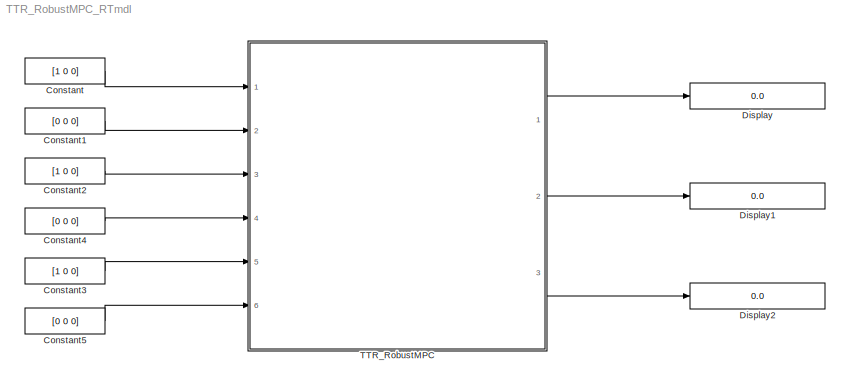
MODEL TTR_RobustMPC_RTmdl
KIND model
BLOCK [Constant] Constant
  SID = 31
  Value = [1 0 0]
BLOCK [Constant] Constant1
  SID = 32
  Value = [0 0 0]
BLOCK [Constant] Constant2
  SID = 33
  Value = [1 0 0]
BLOCK [Constant] Constant3
  SID = 34
  Value = [1 0 0]
BLOCK [Constant] Constant4
  SID = 35
  Value = [0 0 0]
BLOCK [Constant] Constant5
  SID = 36
  Value = [0 0 0]
BLOCK [Display] Display
  Decimation = 1
  Lockdown = off
  Ports = [1]
  SID = 37
BLOCK [Display] Display1
  Decimation = 1
  Lockdown = off
  Ports = [1]
  SID = 38
BLOCK [Display] Display2
  Decimation = 1
  Lockdown = off
  Ports = [1]
  SID = 39
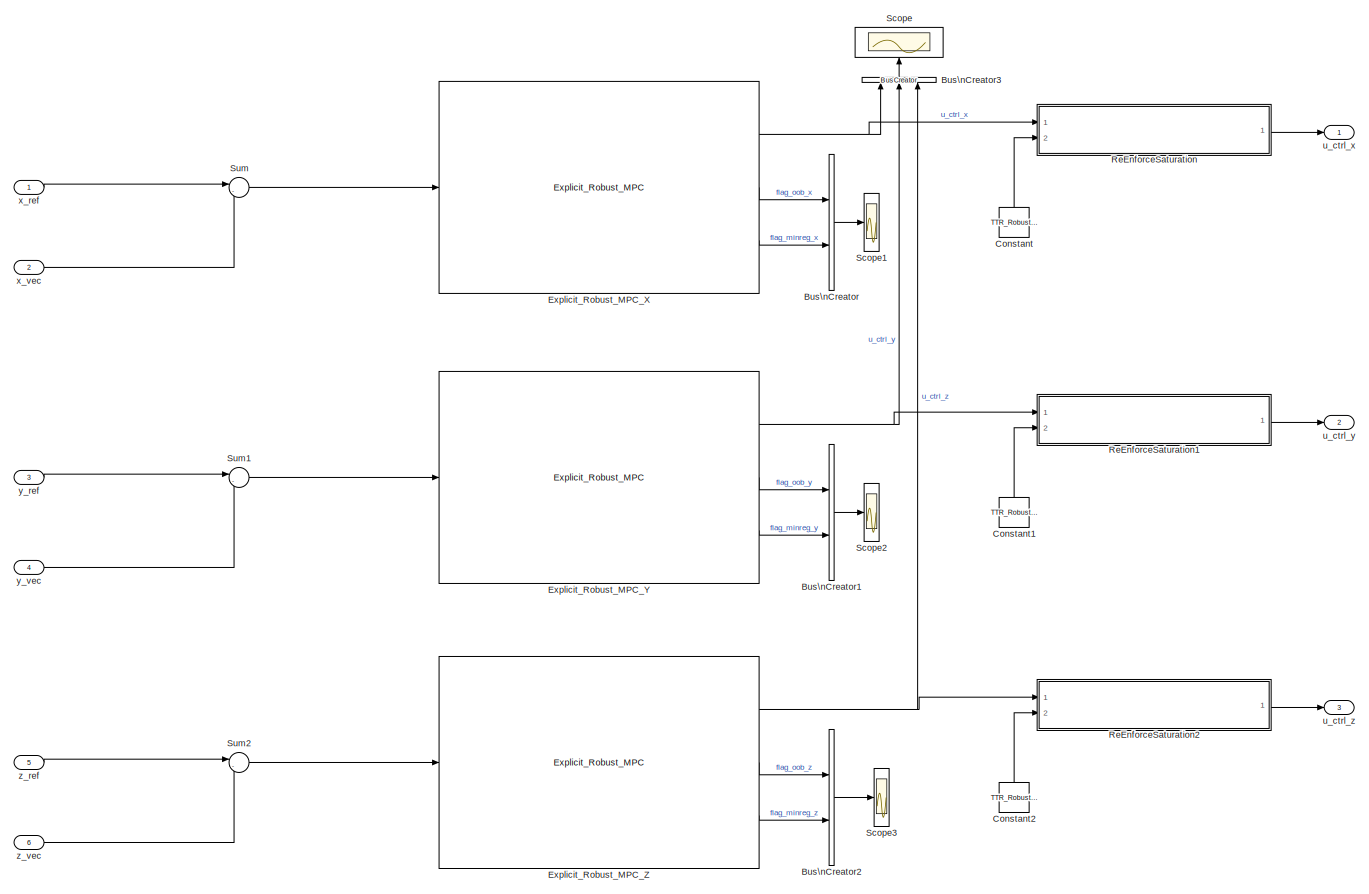
[diagram: TTR_RobustMPC - part 1/1, most of the canvas]
BLOCK [SubSystem] TTR_RobustMPC
  FunctionWithSeparateData = off
  MaskHideContents = off
  MinAlgLoopOccurrences = off
  Opaque = off
  Ports = [6, 3]
  PropExecContextOutsideSubsystem = off
  RTWSystemCode = Auto
  RequestExecContextInheritance = off
  SID = 1
BLOCK [BusCreator] TTR_RobustMPC/Bus\nCreator
  DisplayOption = bar
  Inputs = 2
  Ports = [2, 1]
  SID = 23
BLOCK [BusCreator] TTR_RobustMPC/Bus\nCreator1
  DisplayOption = bar
  Inputs = 2
  Ports = [2, 1]
  SID = 24
BLOCK [BusCreator] TTR_RobustMPC/Bus\nCreator2
  DisplayOption = bar
  Inputs = 2
  Ports = [2, 1]
  SID = 25
BLOCK [BusCreator] TTR_RobustMPC/Bus\nCreator3
  DisplayOption = bar
  Inputs = 3
  Ports = [3, 1]
  SID = 26
BLOCK [Constant] TTR_RobustMPC/Constant
  SID = 16
  Value = TTR_RobustMPC.Xdir.U_bounds
BLOCK [Constant] TTR_RobustMPC/Constant1
  SID = 17
  Value = TTR_RobustMPC.Ydir.U_bounds
BLOCK [Constant] TTR_RobustMPC/Constant2
  SID = 19
  Value = TTR_RobustMPC.Zdir.U_bounds
BLOCK [Reference] TTR_RobustMPC/Explicit_Robust_MPC_X  REF=Robust_MPC_Library/Explicit_Robust_MPC
  F = TTR_RobustMPC.Xdir.F
  G = TTR_RobustMPC.Xdir.G
  H = TTR_RobustMPC.Xdir.H
  Hi_init = zeros(100,TTR_RobustMPC.Xdir.Nx)
  K = TTR_RobustMPC.Xdir.K
  Ki_init = zeros(100,TTR_RobustMPC.Xdir.Nu)
  Nc = TTR_RobustMPC.Xdir.Nc
  Nx = TTR_RobustMPC.Xdir.Nx
  Ports = [1, 3]
  SID = 9
  SourceBlock = Robust_MPC_Library/Explicit_Robust_MPC
BLOCK [Reference] TTR_RobustMPC/Explicit_Robust_MPC_Y  REF=Robust_MPC_Library/Explicit_Robust_MPC
  F = TTR_RobustMPC.Ydir.F
  G = TTR_RobustMPC.Ydir.G
  H = TTR_RobustMPC.Ydir.H
  Hi_init = zeros(100,TTR_RobustMPC.Ydir.Nx)
  K = TTR_RobustMPC.Ydir.K
  Ki_init = zeros(100,TTR_RobustMPC.Ydir.Nu)
  Nc = TTR_RobustMPC.Ydir.Nc
  Nx = TTR_RobustMPC.Ydir.Nx
  Ports = [1, 3]
  SID = 11
  SourceBlock = Robust_MPC_Library/Explicit_Robust_MPC
BLOCK [Reference] TTR_RobustMPC/Explicit_Robust_MPC_Z  REF=Robust_MPC_Library/Explicit_Robust_MPC
  F = TTR_RobustMPC.Zdir.F
  G = TTR_RobustMPC.Zdir.G
  H = TTR_RobustMPC.Zdir.H
  Hi_init = zeros(100,TTR_RobustMPC.Zdir.Nx)
  K = TTR_RobustMPC.Zdir.K
  Ki_init = zeros(100,TTR_RobustMPC.Zdir.Nu)
  Nc = TTR_RobustMPC.Zdir.Nc
  Nx = TTR_RobustMPC.Zdir.Nx
  Ports = [1, 3]
  SID = 13
  SourceBlock = Robust_MPC_Library/Explicit_Robust_MPC
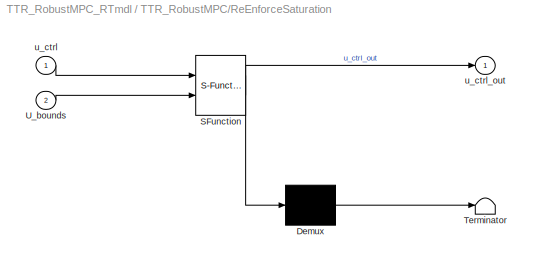
BLOCK [SubSystem] TTR_RobustMPC/ReEnforceSaturation
  ErrorFcn = Stateflow.Translate.translate
  FunctionWithSeparateData = off
  MaskHideContents = off
  MinAlgLoopOccurrences = off
  Opaque = off
  PermitHierarchicalResolution = ExplicitOnly
  Ports = [2, 1]
  PropExecContextOutsideSubsystem = off
  RTWSystemCode = Auto
  RequestExecContextInheritance = off
  SFBlockType = MATLAB Function
  SID = 15
  TreatAsAtomicUnit = on
BLOCK [Demux] TTR_RobustMPC/ReEnforceSaturation/ Demux 
  Outputs = 1
  Ports = [1, 1]
  SID = 15::19
BLOCK [S-Function] TTR_RobustMPC/ReEnforceSaturation/ SFunction 
  EnableBusSupport = on
  FunctionName = sf_sfun
  PortCounts = [2 2]
  Ports = [2, 2]
  SID = 15::18
  Tag = Stateflow S-Function TTR_RobustMPC_RTmdl 2
BLOCK [Terminator] TTR_RobustMPC/ReEnforceSaturation/ Terminator 
  SID = 15::20
BLOCK [Inport] TTR_RobustMPC/ReEnforceSaturation/U_bounds
  IconDisplay = Port number
  Port = 2
  SID = 15::21
BLOCK [Inport] TTR_RobustMPC/ReEnforceSaturation/u_ctrl
  IconDisplay = Port number
  SID = 15::1
BLOCK [Outport] TTR_RobustMPC/ReEnforceSaturation/u_ctrl_out
  IconDisplay = Port number
  SID = 15::5
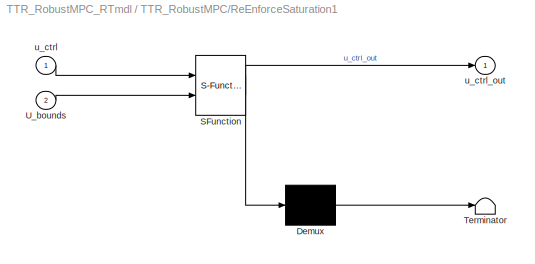
BLOCK [SubSystem] TTR_RobustMPC/ReEnforceSaturation1
  ErrorFcn = Stateflow.Translate.translate
  FunctionWithSeparateData = off
  MaskHideContents = off
  MinAlgLoopOccurrences = off
  Opaque = off
  PermitHierarchicalResolution = ExplicitOnly
  Ports = [2, 1]
  PropExecContextOutsideSubsystem = off
  RTWSystemCode = Auto
  RequestExecContextInheritance = off
  SFBlockType = MATLAB Function
  SID = 18
  TreatAsAtomicUnit = on
BLOCK [Demux] TTR_RobustMPC/ReEnforceSaturation1/ Demux 
  Outputs = 1
  Ports = [1, 1]
  SID = 18::19
BLOCK [S-Function] TTR_RobustMPC/ReEnforceSaturation1/ SFunction 
  EnableBusSupport = on
  FunctionName = sf_sfun
  PortCounts = [2 2]
  Ports = [2, 2]
  SID = 18::18
  Tag = Stateflow S-Function TTR_RobustMPC_RTmdl 1
BLOCK [Terminator] TTR_RobustMPC/ReEnforceSaturation1/ Terminator 
  SID = 18::20
BLOCK [Inport] TTR_RobustMPC/ReEnforceSaturation1/U_bounds
  IconDisplay = Port number
  Port = 2
  SID = 18::21
BLOCK [Inport] TTR_RobustMPC/ReEnforceSaturation1/u_ctrl
  IconDisplay = Port number
  SID = 18::1
BLOCK [Outport] TTR_RobustMPC/ReEnforceSaturation1/u_ctrl_out
  IconDisplay = Port number
  SID = 18::5
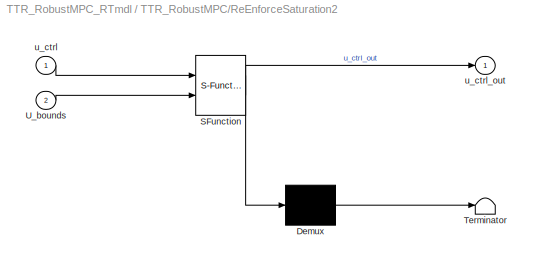
BLOCK [SubSystem] TTR_RobustMPC/ReEnforceSaturation2
  ErrorFcn = Stateflow.Translate.translate
  FunctionWithSeparateData = off
  MaskHideContents = off
  MinAlgLoopOccurrences = off
  Opaque = off
  PermitHierarchicalResolution = ExplicitOnly
  Ports = [2, 1]
  PropExecContextOutsideSubsystem = off
  RTWSystemCode = Auto
  RequestExecContextInheritance = off
  SFBlockType = MATLAB Function
  SID = 20
  TreatAsAtomicUnit = on
BLOCK [Demux] TTR_RobustMPC/ReEnforceSaturation2/ Demux 
  Outputs = 1
  Ports = [1, 1]
  SID = 20::19
BLOCK [S-Function] TTR_RobustMPC/ReEnforceSaturation2/ SFunction 
  EnableBusSupport = on
  FunctionName = sf_sfun
  PortCounts = [2 2]
  Ports = [2, 2]
  SID = 20::18
  Tag = Stateflow S-Function TTR_RobustMPC_RTmdl 3
BLOCK [Terminator] TTR_RobustMPC/ReEnforceSaturation2/ Terminator 
  SID = 20::20
BLOCK [Inport] TTR_RobustMPC/ReEnforceSaturation2/U_bounds
  IconDisplay = Port number
  Port = 2
  SID = 20::21
BLOCK [Inport] TTR_RobustMPC/ReEnforceSaturation2/u_ctrl
  IconDisplay = Port number
  SID = 20::1
BLOCK [Outport] TTR_RobustMPC/ReEnforceSaturation2/u_ctrl_out
  IconDisplay = Port number
  SID = 20::5
BLOCK [Scope] TTR_RobustMPC/Scope
  DataFormat = StructureWithTime
  Floating = off
  LimitDataPoints = off
  NumInputPorts = 1
  Ports = [1]
  SID = 27
  SampleTime = 0
  SaveName = RobustMPC_uctrl_xyz
  SaveToWorkspace = on
  ShowLegends = off
BLOCK [Scope] TTR_RobustMPC/Scope1
  DataFormat = StructureWithTime
  Floating = off
  NumInputPorts = 1
  Ports = [1]
  SID = 28
  SampleTime = 0
  ShowLegends = off
BLOCK [Scope] TTR_RobustMPC/Scope2
  DataFormat = StructureWithTime
  Floating = off
  NumInputPorts = 1
  Ports = [1]
  SID = 29
  SampleTime = 0
  SaveName = ScopeData1
  ShowLegends = off
BLOCK [Scope] TTR_RobustMPC/Scope3
  DataFormat = StructureWithTime
  Floating = off
  NumInputPorts = 1
  Ports = [1]
  SID = 30
  SampleTime = 0
  SaveName = ScopeData2
  ShowLegends = off
BLOCK [Sum] TTR_RobustMPC/Sum
  IconShape = round
  InputSameDT = off
  Inputs = |-+
  OutDataTypeStr = Inherit: Inherit via internal rule
  Ports = [2, 1]
  SID = 10
  SaturateOnIntegerOverflow = off
BLOCK [Sum] TTR_RobustMPC/Sum1
  IconShape = round
  InputSameDT = off
  Inputs = |-+
  OutDataTypeStr = Inherit: Inherit via internal rule
  Ports = [2, 1]
  SID = 12
  SaturateOnIntegerOverflow = off
BLOCK [Sum] TTR_RobustMPC/Sum2
  IconShape = round
  InputSameDT = off
  Inputs = |-+
  OutDataTypeStr = Inherit: Inherit via internal rule
  Ports = [2, 1]
  SID = 14
  SaturateOnIntegerOverflow = off
BLOCK [Outport] TTR_RobustMPC/u_ctrl_x
  IconDisplay = Port number
  SID = 3
BLOCK [Outport] TTR_RobustMPC/u_ctrl_y
  IconDisplay = Port number
  Port = 2
  SID = 21
BLOCK [Outport] TTR_RobustMPC/u_ctrl_z
  IconDisplay = Port number
  Port = 3
  SID = 22
BLOCK [Inport] TTR_RobustMPC/x_ref
  IconDisplay = Port number
  SID = 2
BLOCK [Inport] TTR_RobustMPC/x_vec
  IconDisplay = Port number
  Port = 2
  SID = 4
BLOCK [Inport] TTR_RobustMPC/y_ref
  IconDisplay = Port number
  Port = 3
  SID = 5
BLOCK [Inport] TTR_RobustMPC/y_vec
  IconDisplay = Port number
  Port = 4
  SID = 6
BLOCK [Inport] TTR_RobustMPC/z_ref
  IconDisplay = Port number
  Port = 5
  SID = 7
BLOCK [Inport] TTR_RobustMPC/z_vec
  IconDisplay = Port number
  Port = 6
  SID = 8
LINE Constant1:1 -> TTR_RobustMPC:2
LINE Constant2:1 -> TTR_RobustMPC:3
LINE Constant3:1 -> TTR_RobustMPC:5
LINE Constant4:1 -> TTR_RobustMPC:4
LINE Constant5:1 -> TTR_RobustMPC:6
LINE Constant:1 -> TTR_RobustMPC:1
LINE TTR_RobustMPC/Bus\nCreator1:1 -> TTR_RobustMPC/Scope2:1
LINE TTR_RobustMPC/Bus\nCreator2:1 -> TTR_RobustMPC/Scope3:1
LINE TTR_RobustMPC/Bus\nCreator3:1 -> TTR_RobustMPC/Scope:1
LINE TTR_RobustMPC/Bus\nCreator:1 -> TTR_RobustMPC/Scope1:1
LINE TTR_RobustMPC/Constant1:1 -> TTR_RobustMPC/ReEnforceSaturation1:2
LINE TTR_RobustMPC/Constant2:1 -> TTR_RobustMPC/ReEnforceSaturation2:2
LINE TTR_RobustMPC/Constant:1 -> TTR_RobustMPC/ReEnforceSaturation:2
NET TTR_RobustMPC/Explicit_Robust_MPC_X:1 -> TTR_RobustMPC/Bus\nCreator3:1, TTR_RobustMPC/ReEnforceSaturation:1
LINE TTR_RobustMPC/Explicit_Robust_MPC_X:2 -> TTR_RobustMPC/Bus\nCreator:1
LINE TTR_RobustMPC/Explicit_Robust_MPC_X:3 -> TTR_RobustMPC/Bus\nCreator:2
NET TTR_RobustMPC/Explicit_Robust_MPC_Y:1 -> TTR_RobustMPC/Bus\nCreator3:2, TTR_RobustMPC/ReEnforceSaturation1:1
LINE TTR_RobustMPC/Explicit_Robust_MPC_Y:2 -> TTR_RobustMPC/Bus\nCreator1:1
LINE TTR_RobustMPC/Explicit_Robust_MPC_Y:3 -> TTR_RobustMPC/Bus\nCreator1:2
NET TTR_RobustMPC/Explicit_Robust_MPC_Z:1 -> TTR_RobustMPC/Bus\nCreator3:3, TTR_RobustMPC/ReEnforceSaturation2:1
LINE TTR_RobustMPC/Explicit_Robust_MPC_Z:2 -> TTR_RobustMPC/Bus\nCreator2:1
LINE TTR_RobustMPC/Explicit_Robust_MPC_Z:3 -> TTR_RobustMPC/Bus\nCreator2:2
LINE TTR_RobustMPC/ReEnforceSaturation/ Demux :1 -> TTR_RobustMPC/ReEnforceSaturation/ Terminator :1
LINE TTR_RobustMPC/ReEnforceSaturation/ SFunction :1 -> TTR_RobustMPC/ReEnforceSaturation/ Demux :1
LINE TTR_RobustMPC/ReEnforceSaturation/ SFunction :2 -> TTR_RobustMPC/ReEnforceSaturation/u_ctrl_out:1
LINE TTR_RobustMPC/ReEnforceSaturation/U_bounds:1 -> TTR_RobustMPC/ReEnforceSaturation/ SFunction :2
LINE TTR_RobustMPC/ReEnforceSaturation/u_ctrl:1 -> TTR_RobustMPC/ReEnforceSaturation/ SFunction :1
LINE TTR_RobustMPC/ReEnforceSaturation1/ Demux :1 -> TTR_RobustMPC/ReEnforceSaturation1/ Terminator :1
LINE TTR_RobustMPC/ReEnforceSaturation1/ SFunction :1 -> TTR_RobustMPC/ReEnforceSaturation1/ Demux :1
LINE TTR_RobustMPC/ReEnforceSaturation1/ SFunction :2 -> TTR_RobustMPC/ReEnforceSaturation1/u_ctrl_out:1
LINE TTR_RobustMPC/ReEnforceSaturation1/U_bounds:1 -> TTR_RobustMPC/ReEnforceSaturation1/ SFunction :2
LINE TTR_RobustMPC/ReEnforceSaturation1/u_ctrl:1 -> TTR_RobustMPC/ReEnforceSaturation1/ SFunction :1
LINE TTR_RobustMPC/ReEnforceSaturation1:1 -> TTR_RobustMPC/u_ctrl_y:1
LINE TTR_RobustMPC/ReEnforceSaturation2/ Demux :1 -> TTR_RobustMPC/ReEnforceSaturation2/ Terminator :1
LINE TTR_RobustMPC/ReEnforceSaturation2/ SFunction :1 -> TTR_RobustMPC/ReEnforceSaturation2/ Demux :1
LINE TTR_RobustMPC/ReEnforceSaturation2/ SFunction :2 -> TTR_RobustMPC/ReEnforceSaturation2/u_ctrl_out:1
LINE TTR_RobustMPC/ReEnforceSaturation2/U_bounds:1 -> TTR_RobustMPC/ReEnforceSaturation2/ SFunction :2
LINE TTR_RobustMPC/ReEnforceSaturation2/u_ctrl:1 -> TTR_RobustMPC/ReEnforceSaturation2/ SFunction :1
LINE TTR_RobustMPC/ReEnforceSaturation2:1 -> TTR_RobustMPC/u_ctrl_z:1
LINE TTR_RobustMPC/ReEnforceSaturation:1 -> TTR_RobustMPC/u_ctrl_x:1
LINE TTR_RobustMPC/Sum1:1 -> TTR_RobustMPC/Explicit_Robust_MPC_Y:1
LINE TTR_RobustMPC/Sum2:1 -> TTR_RobustMPC/Explicit_Robust_MPC_Z:1
LINE TTR_RobustMPC/Sum:1 -> TTR_RobustMPC/Explicit_Robust_MPC_X:1
LINE TTR_RobustMPC/x_ref:1 -> TTR_RobustMPC/Sum:1
LINE TTR_RobustMPC/x_vec:1 -> TTR_RobustMPC/Sum:2
LINE TTR_RobustMPC/y_ref:1 -> TTR_RobustMPC/Sum1:1
LINE TTR_RobustMPC/y_vec:1 -> TTR_RobustMPC/Sum1:2
LINE TTR_RobustMPC/z_ref:1 -> TTR_RobustMPC/Sum2:1
LINE TTR_RobustMPC/z_vec:1 -> TTR_RobustMPC/Sum2:2
LINE TTR_RobustMPC:1 -> Display:1
LINE TTR_RobustMPC:2 -> Display1:1
LINE TTR_RobustMPC:3 -> Display2:1
note: NET lines group one-source signal fan-out (src -> all destinations, sorted); 1:1 wires keep LINE
CHART TTR_RobustMPC/ReEnforceSaturation1 states=1 transitions=1
  STATE_LABEL 'eML_blk_kernel()'
CHART TTR_RobustMPC/ReEnforceSaturation states=1 transitions=1
  STATE_LABEL 'eML_blk_kernel()'
CHART TTR_RobustMPC/ReEnforceSaturation2 states=1 transitions=1
  STATE_LABEL 'eML_blk_kernel()'
